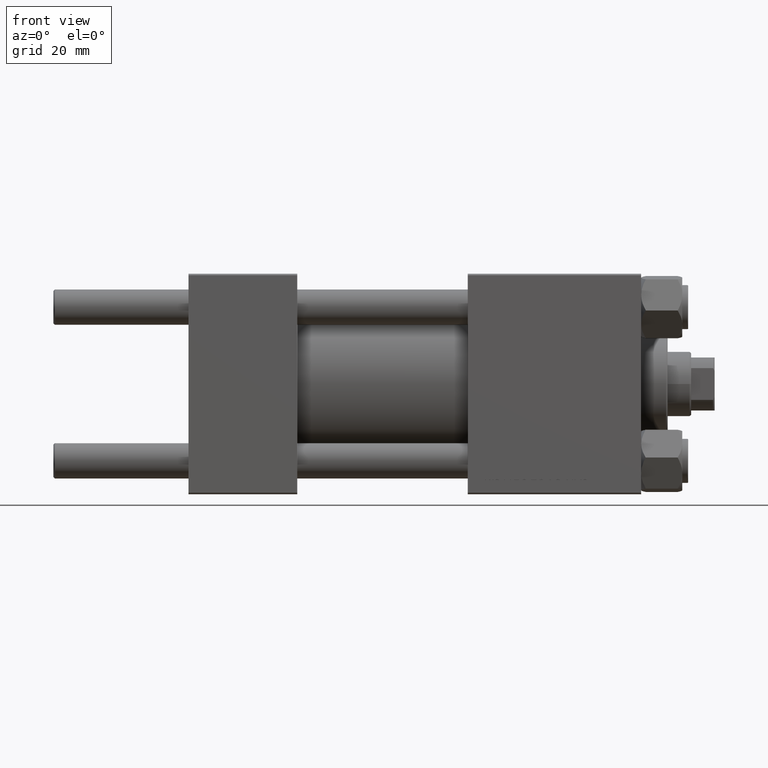
[diagram: clean part render]
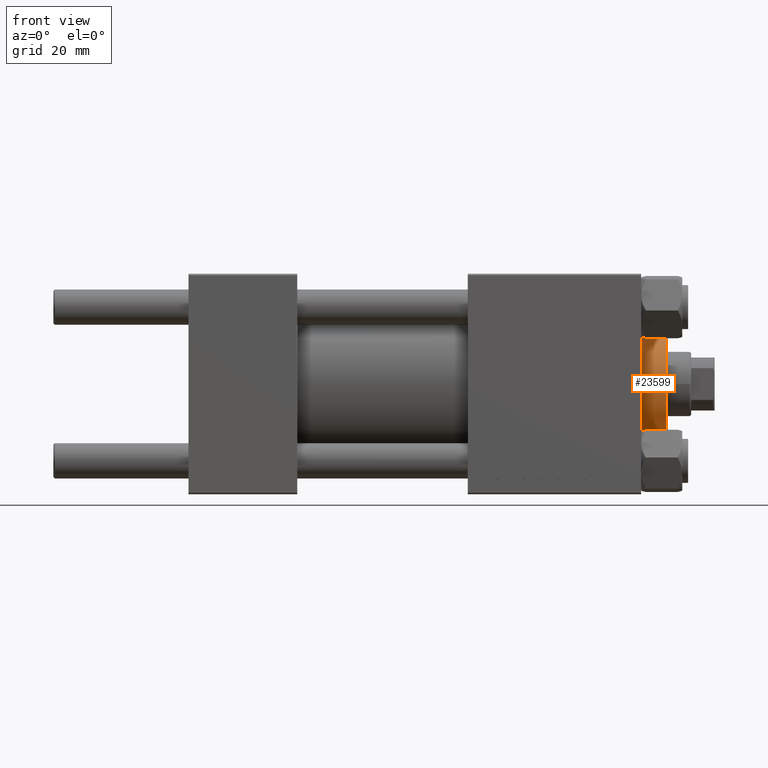
[diagram: same view with one face highlighted and labeled with its STEP entity id]
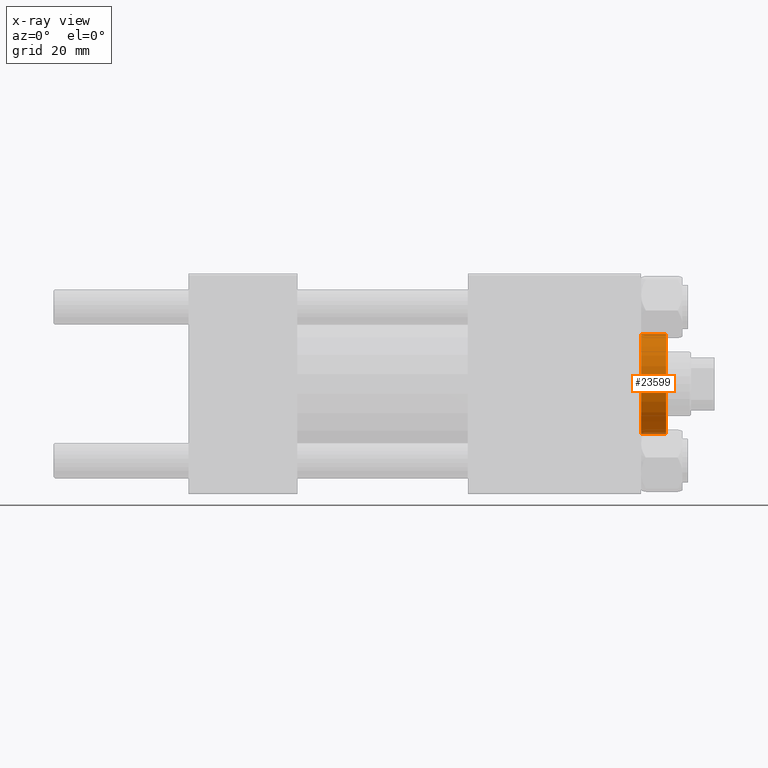
[diagram: x-ray of the same camera — body ghosted, the highlighted face saturated]
A machine part, front view. The second image highlights one B-rep face of the part: STEP entity #23599.
The next image is the same camera in x-ray: the body ghosted, the highlighted face saturated — about 4% of this face is hidden behind the body in this view.
In plain terms, the highlighted cylindrical surface (partial cylindrical patch) has radius 17 mm, axis along (-1, -0, 0).
Its self-contained STEP definition (entity closure, byte-faithful):
#201 = EDGE_CURVE ( 'NONE', #4016, #44909, #48594, .T. ) ;
#1299 = CARTESIAN_POINT ( 'NONE',  ( 17.00000000000000000, 2.081899558550500280E-15, 37.19999999999999574 ) ) ;
#2809 = AXIS2_PLACEMENT_3D ( 'NONE', #4824, #28848, #17452 ) ;
#3698 = CARTESIAN_POINT ( 'NONE',  ( -17.00000000000000000, 0.000000000000000000, 37.69999999999999574 ) ) ;
#4016 = VERTEX_POINT ( 'NONE', #1299 ) ;
#4824 = CARTESIAN_POINT ( 'NONE',  ( 0.000000000000000000, 0.000000000000000000, 28.69999999999999929 ) ) ;
#4909 = CARTESIAN_POINT ( 'NONE',  ( 17.00000000000000000, 2.081899558550500280E-15, 28.69999999999999929 ) ) ;
#7009 = DIRECTION ( 'NONE',  ( -0.000000000000000000, -0.000000000000000000, -1.000000000000000000 ) ) ;
#10037 = CYLINDRICAL_SURFACE ( 'NONE', #16183, 17.00000000000000000 ) ;
#10215 = DIRECTION ( 'NONE',  ( 1.000000000000000000, 0.000000000000000000, 0.000000000000000000 ) ) ;
#10280 = FACE_OUTER_BOUND ( 'NONE', #32066, .T. ) ;
#12242 = AXIS2_PLACEMENT_3D ( 'NONE', #14527, #26169, #10215 ) ;
#14527 = CARTESIAN_POINT ( 'NONE',  ( 0.000000000000000000, 0.000000000000000000, 37.19999999999999574 ) ) ;
#15504 = ORIENTED_EDGE ( 'NONE', *, *, #35173, .T. ) ;
#16183 = AXIS2_PLACEMENT_3D ( 'NONE', #18643, #40923, #45718 ) ;
#17452 = DIRECTION ( 'NONE',  ( 1.000000000000000000, 0.000000000000000000, 0.000000000000000000 ) ) ;
#18643 = CARTESIAN_POINT ( 'NONE',  ( 0.000000000000000000, 0.000000000000000000, 37.69999999999999574 ) ) ;
#20497 = ORIENTED_EDGE ( 'NONE', *, *, #35232, .T. ) ;
#21745 = LINE ( 'NONE', #3698, #24633 ) ;
#22792 = VERTEX_POINT ( 'NONE', #4909 ) ;
#22926 = ORIENTED_EDGE ( 'NONE', *, *, #32384, .F. ) ;
#23599 = ADVANCED_FACE ( 'NONE', ( #10280 ), #10037, .T. ) ;
#24633 = VECTOR ( 'NONE', #25296, 1000.000000000000000 ) ;
#25296 = DIRECTION ( 'NONE',  ( -0.000000000000000000, -0.000000000000000000, -1.000000000000000000 ) ) ;
#26103 = VECTOR ( 'NONE', #7009, 1000.000000000000000 ) ;
#26169 = DIRECTION ( 'NONE',  ( 0.000000000000000000, 0.000000000000000000, -1.000000000000000000 ) ) ;
#28848 = DIRECTION ( 'NONE',  ( 0.000000000000000000, 0.000000000000000000, 1.000000000000000000 ) ) ;
#32066 = EDGE_LOOP ( 'NONE', ( #22926, #47741, #20497, #15504 ) ) ;
#32384 = EDGE_CURVE ( 'NONE', #4016, #22792, #49289, .T. ) ;
#35173 = EDGE_CURVE ( 'NONE', #42573, #22792, #48874, .T. ) ;
#35232 = EDGE_CURVE ( 'NONE', #44909, #42573, #21745, .T. ) ;
#36891 = CARTESIAN_POINT ( 'NONE',  ( -17.00000000000000000, 0.000000000000000000, 28.69999999999999929 ) ) ;
#40923 = DIRECTION ( 'NONE',  ( -0.000000000000000000, -0.000000000000000000, -1.000000000000000000 ) ) ;
#41615 = CARTESIAN_POINT ( 'NONE',  ( -17.00000000000000000, 0.000000000000000000, 37.19999999999999574 ) ) ;
#41685 = CARTESIAN_POINT ( 'NONE',  ( 17.00000000000000000, 2.081899558550500280E-15, 37.69999999999999574 ) ) ;
#42573 = VERTEX_POINT ( 'NONE', #36891 ) ;
#44909 = VERTEX_POINT ( 'NONE', #41615 ) ;
#45718 = DIRECTION ( 'NONE',  ( -1.000000000000000000, 0.000000000000000000, 0.000000000000000000 ) ) ;
#47741 = ORIENTED_EDGE ( 'NONE', *, *, #201, .T. ) ;
#48594 = CIRCLE ( 'NONE', #12242, 17.00000000000000000 ) ;
#48874 = CIRCLE ( 'NONE', #2809, 17.00000000000000000 ) ;
#49289 = LINE ( 'NONE', #41685, #26103 ) ;